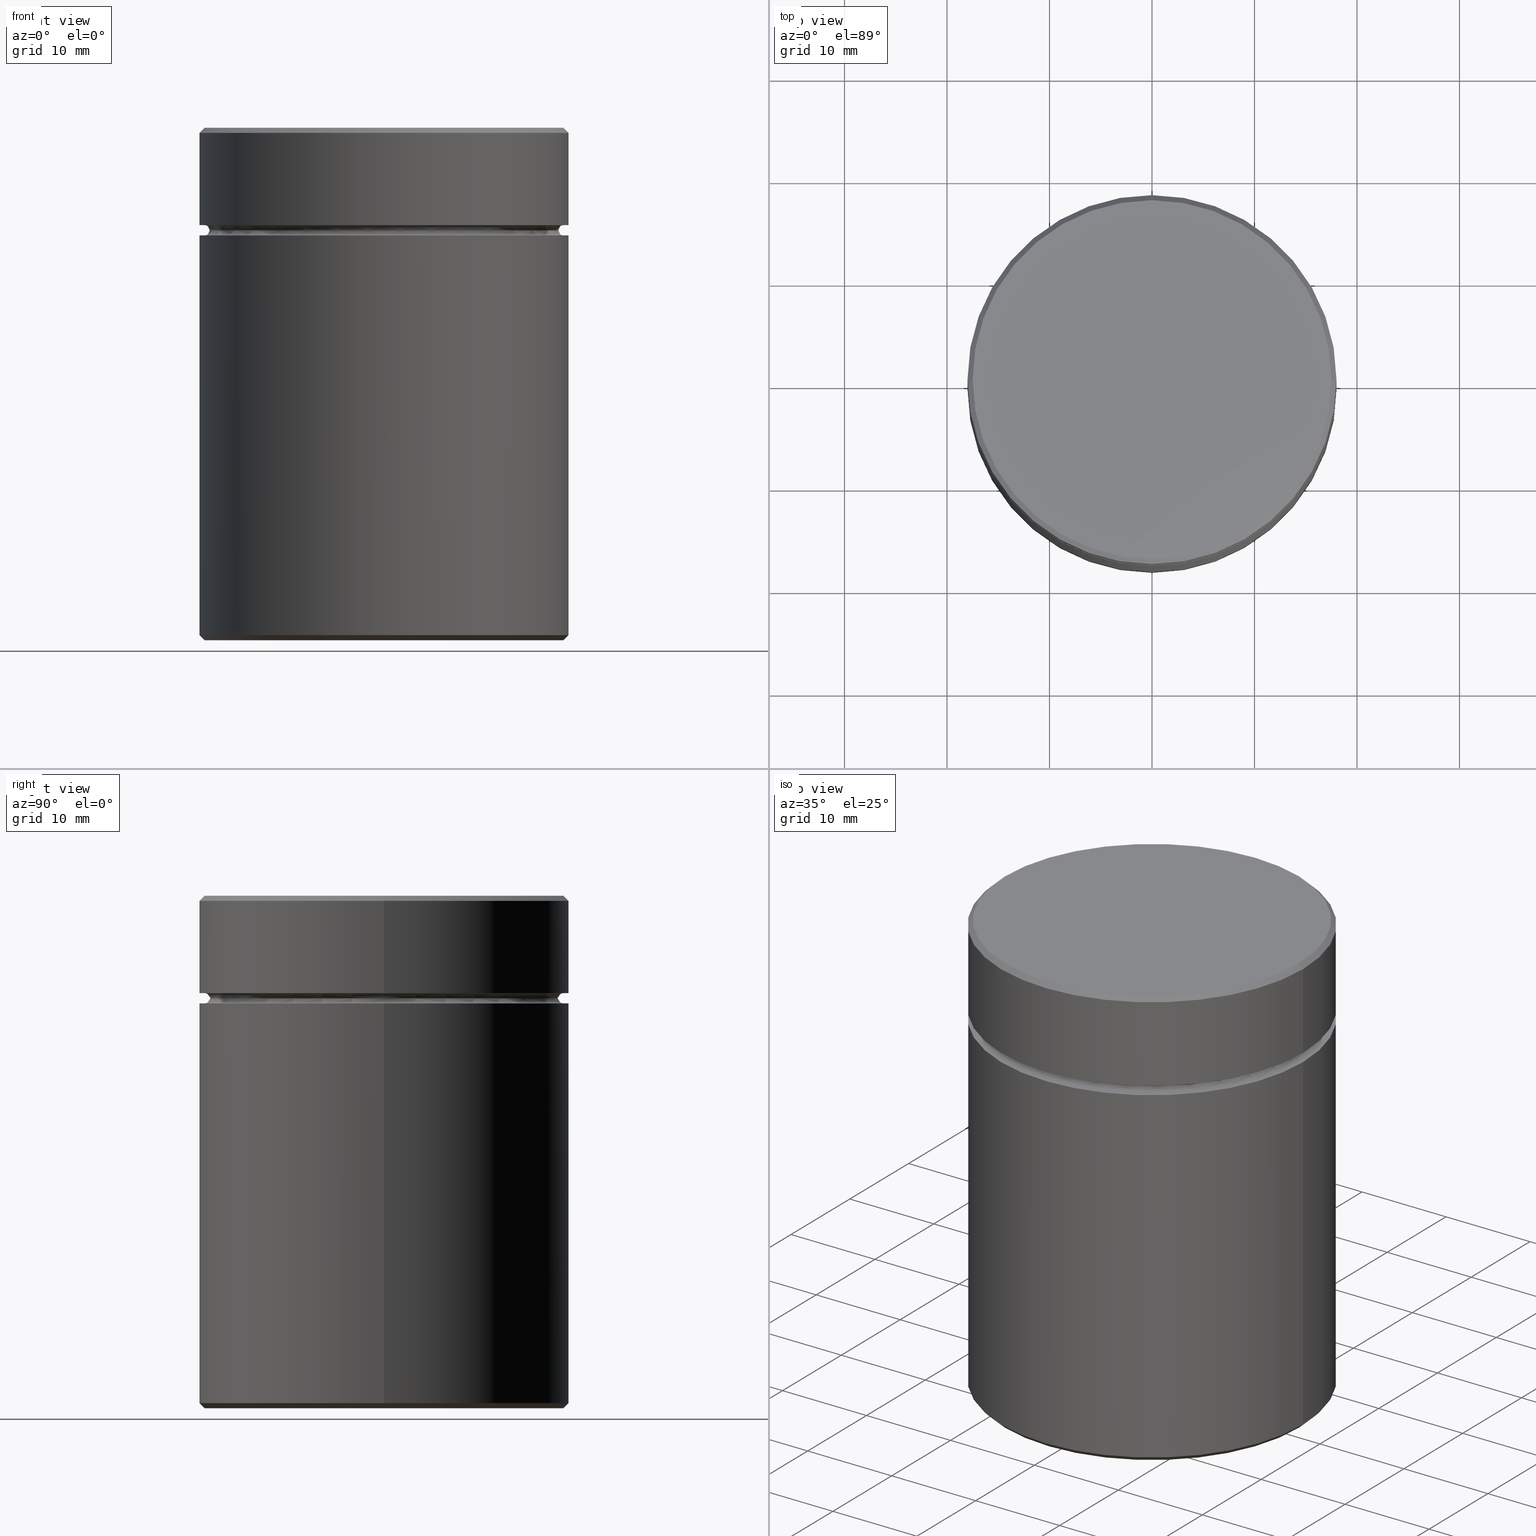
[diagram: canonical four-view strip — front | top / right | iso, engineering-drawing reading convention]
A machine part, canonical four-view strip (front | top / right | iso — engineering-drawing reading convention). The complete STEP part file that produces these views, byte-faithful:
ISO-10303-21;
HEADER;
FILE_DESCRIPTION (( 'STEP AP203' ),
    '1' );
FILE_NAME ('c985.STEP',
    '2024-01-08T12:16:09',
    ( '' ),
    ( '' ),
    'SwSTEP 2.0',
    'SolidWorks 2019',
    '' );
FILE_SCHEMA (( 'CONFIG_CONTROL_DESIGN' ));
ENDSEC;

DATA;
#1 = FACE_OUTER_BOUND ( 'NONE', #402, .T. ) ;
#2 = EDGE_LOOP ( 'NONE', ( #281, #153 ) ) ;
#3 = APPROVAL_DATE_TIME ( #391, #237 ) ;
#4 = DESIGN_CONTEXT ( 'detailed design', #121, 'design' ) ;
#5 = EDGE_CURVE ( 'NONE', #124, #300, #252, .T. ) ;
#6 = CLOSED_SHELL ( 'NONE', ( #327, #198, #232, #184, #209, #17, #182, #319, #269, #373, #82, #415, #404, #437, #482, #144, #495, #354, #286 ) ) ;
#7 = TOROIDAL_SURFACE ( 'NONE', #525, 17.49999999999999645, 0.5000000000000000000 ) ;
#8 = CIRCLE ( 'NONE', #537, 18.00000000000000000 ) ;
#9 = ORIENTED_EDGE ( 'NONE', *, *, #130, .F. ) ;
#10 = CARTESIAN_POINT ( 'NONE',  ( 0.000000000000000000, 0.000000000000000000, 0.000000000000000000 ) ) ;
#11 = CARTESIAN_POINT ( 'NONE',  ( 0.000000000000000000, 0.000000000000000000, -10.00000000000000178 ) ) ;
#12 = EDGE_LOOP ( 'NONE', ( #510, #51, #107, #458 ) ) ;
#13 = LINE ( 'NONE', #50, #368 ) ;
#14 = DIRECTION ( 'NONE',  ( -0.000000000000000000, -0.000000000000000000, 1.000000000000000000 ) ) ;
#15 = CC_DESIGN_PERSON_AND_ORGANIZATION_ASSIGNMENT ( #43, #565, ( #550 ) ) ;
#16 = ORIENTED_EDGE ( 'NONE', *, *, #459, .F. ) ;
#17 = ADVANCED_FACE ( 'NONE', ( #427 ), #523, .T. ) ;
#18 = CARTESIAN_POINT ( 'NONE',  ( 0.000000000000000000, 0.000000000000000000, -49.50000000000000000 ) ) ;
#19 = CIRCLE ( 'NONE', #533, 12.50000000000000000 ) ;
#20 = AXIS2_PLACEMENT_3D ( 'NONE', #174, #436, #217 ) ;
#21 = DIRECTION ( 'NONE',  ( -0.000000000000000000, -0.000000000000000000, 1.000000000000000000 ) ) ;
#22 = CARTESIAN_POINT ( 'NONE',  ( 0.000000000000000000, 0.000000000000000000, -10.50000000000000178 ) ) ;
#23 = CARTESIAN_POINT ( 'NONE',  ( 17.50000000000000000, 2.173748068486551641E-15, 0.000000000000000000 ) ) ;
#24 = ORIENTED_EDGE ( 'NONE', *, *, #283, .T. ) ;
#25 = CARTESIAN_POINT ( 'NONE',  ( 17.49999999999999645, 0.000000000000000000, -10.50000000000000178 ) ) ;
#26 = CARTESIAN_POINT ( 'NONE',  ( 0.000000000000000000, 0.000000000000000000, 0.000000000000000000 ) ) ;
#27 = ORIENTED_EDGE ( 'NONE', *, *, #378, .T. ) ;
#28 = EDGE_CURVE ( 'NONE', #445, #89, #474, .T. ) ;
#29 = FACE_OUTER_BOUND ( 'NONE', #12, .T. ) ;
#30 = ORIENTED_EDGE ( 'NONE', *, *, #28, .F. ) ;
#31 = CIRCLE ( 'NONE', #242, 17.50000000000000000 ) ;
#32 = APPROVAL_PERSON_ORGANIZATION ( #220, #516, #240 ) ;
#33 = DIRECTION ( 'NONE',  ( -0.000000000000000000, -0.000000000000000000, 1.000000000000000000 ) ) ;
#34 = EDGE_LOOP ( 'NONE', ( #224, #158 ) ) ;
#35 = DIRECTION ( 'NONE',  ( 1.000000000000000000, 0.000000000000000000, 0.000000000000000000 ) ) ;
#36 = EDGE_CURVE ( 'NONE', #249, #157, #271, .T. ) ;
#37 = FACE_BOUND ( 'NONE', #229, .T. ) ;
#38 = DIRECTION ( 'NONE',  ( 1.000000000000000000, 0.000000000000000000, 0.000000000000000000 ) ) ;
#39 = CARTESIAN_POINT ( 'NONE',  ( 0.000000000000000000, 0.000000000000000000, -9.499999999999998224 ) ) ;
#40 = VECTOR ( 'NONE', #531, 999.9999999999998863 ) ;
#41 = AXIS2_PLACEMENT_3D ( 'NONE', #150, #362, #329 ) ;
#42 = CARTESIAN_POINT ( 'NONE',  ( 0.000000000000000000, 0.000000000000000000, -9.500000000000000000 ) ) ;
#43 = PERSON_AND_ORGANIZATION ( #149, #339 ) ;
#44 = LINE ( 'NONE', #307, #338 ) ;
#45 = CARTESIAN_POINT ( 'NONE',  ( 17.49999999999999645, 2.143131898507867854E-15, -9.499999999999998224 ) ) ;
#46 = DIRECTION ( 'NONE',  ( 0.000000000000000000, 0.000000000000000000, -1.000000000000000000 ) ) ;
#47 = DIRECTION ( 'NONE',  ( 0.000000000000000000, -0.000000000000000000, 1.000000000000000000 ) ) ;
#48 = AXIS2_PLACEMENT_3D ( 'NONE', #471, #509, #372 ) ;
#49 = ORIENTED_EDGE ( 'NONE', *, *, #112, .T. ) ;
#50 = CARTESIAN_POINT ( 'NONE',  ( -12.50000000000000000, 0.000000000000000000, -18.00000000000000355 ) ) ;
#51 = ORIENTED_EDGE ( 'NONE', *, *, #450, .F. ) ;
#52 = MECHANICAL_CONTEXT ( 'NONE', #88, 'mechanical' ) ;
#53 = EDGE_CURVE ( 'NONE', #294, #68, #446, .T. ) ;
#54 = CARTESIAN_POINT ( 'NONE',  ( -17.49999999999999645, 2.143131898507867854E-15, -10.50000000000000178 ) ) ;
#55 = CIRCLE ( 'NONE', #253, 17.49999999999999645 ) ;
#56 = AXIS2_PLACEMENT_3D ( 'NONE', #275, #323, #363 ) ;
#57 = ORIENTED_EDGE ( 'NONE', *, *, #75, .T. ) ;
#58 = CC_DESIGN_PERSON_AND_ORGANIZATION_ASSIGNMENT ( #212, #489, ( #114 ) ) ;
#59 = DIRECTION ( 'NONE',  ( -1.000000000000000000, 0.000000000000000000, 0.000000000000000000 ) ) ;
#60 = VERTEX_POINT ( 'NONE', #320 ) ;
#61 = DIRECTION ( 'NONE',  ( 1.000000000000000000, 0.000000000000000000, 0.000000000000000000 ) ) ;
#62 = VERTEX_POINT ( 'NONE', #54 ) ;
#63 = FACE_OUTER_BOUND ( 'NONE', #119, .T. ) ;
#64 = ORIENTED_EDGE ( 'NONE', *, *, #65, .F. ) ;
#65 = EDGE_CURVE ( 'NONE', #326, #294, #84, .T. ) ;
#66 = ORIENTED_EDGE ( 'NONE', *, *, #90, .F. ) ;
#67 = FACE_BOUND ( 'NONE', #2, .T. ) ;
#68 = VERTEX_POINT ( 'NONE', #97 ) ;
#69 = TOROIDAL_SURFACE ( 'NONE', #567, 17.49999999999999645, 0.5000000000000000000 ) ;
#70 = ORIENTED_EDGE ( 'NONE', *, *, #256, .F. ) ;
#71 = DIRECTION ( 'NONE',  ( 0.000000000000000000, -0.000000000000000000, 1.000000000000000000 ) ) ;
#72 = VERTEX_POINT ( 'NONE', #356 ) ;
#73 = FACE_OUTER_BOUND ( 'NONE', #532, .T. ) ;
#74 = CARTESIAN_POINT ( 'NONE',  ( -17.50000000000000000, 2.173748068486551641E-15, -50.00000000000000000 ) ) ;
#75 = EDGE_CURVE ( 'NONE', #293, #396, #393, .T. ) ;
#76 = CIRCLE ( 'NONE', #448, 0.5000000000000004441 ) ;
#77 = DIRECTION ( 'NONE',  ( -0.000000000000000000, -0.000000000000000000, 1.000000000000000000 ) ) ;
#78 = APPROVAL_PERSON_ORGANIZATION ( #135, #527, #569 ) ;
#79 = DIRECTION ( 'NONE',  ( 0.000000000000000000, 0.000000000000000000, -1.000000000000000000 ) ) ;
#80 = CARTESIAN_POINT ( 'NONE',  ( 17.50000000000000000, 0.000000000000000000, -50.00000000000000000 ) ) ;
#81 = CARTESIAN_POINT ( 'NONE',  ( 0.000000000000000000, 0.000000000000000000, -9.999999999999998224 ) ) ;
#82 = ADVANCED_FACE ( 'NONE', ( #67, #241 ), #412, .T. ) ;
#83 = APPROVAL_STATUS ( 'not_yet_approved' ) ;
#84 = CIRCLE ( 'NONE', #399, 17.50000000000000000 ) ;
#85 = VECTOR ( 'NONE', #419, 1000.000000000000000 ) ;
#86 = CC_DESIGN_APPROVAL ( #527, ( #114 ) ) ;
#87 = PERSON_AND_ORGANIZATION_ROLE ( 'design_supplier' ) ;
#88 = APPLICATION_CONTEXT ( 'configuration controlled 3d designs of mechanical parts and assemblies' ) ;
#89 = VERTEX_POINT ( 'NONE', #127 ) ;
#90 = EDGE_CURVE ( 'NONE', #203, #293, #146, .T. ) ;
#91 = LINE ( 'NONE', #183, #40 ) ;
#92 = ORIENTED_EDGE ( 'NONE', *, *, #493, .T. ) ;
#93 = APPROVAL_STATUS ( 'not_yet_approved' ) ;
#94 = ADVANCED_BREP_SHAPE_REPRESENTATION ( 'c985', ( #370, #361 ), #280 ) ;
#95 = AXIS2_PLACEMENT_3D ( 'NONE', #468, #105, #285 ) ;
#96 = CC_DESIGN_PERSON_AND_ORGANIZATION_ASSIGNMENT ( #539, #505, ( #152 ) ) ;
#97 = CARTESIAN_POINT ( 'NONE',  ( -18.00000000000000000, 2.204364238465235428E-15, -0.5000000000000108802 ) ) ;
#98 = EDGE_CURVE ( 'NONE', #203, #68, #357, .T. ) ;
#99 = DIRECTION ( 'NONE',  ( -1.000000000000000000, 0.000000000000000000, 0.000000000000000000 ) ) ;
#100 = VERTEX_POINT ( 'NONE', #403 ) ;
#101 = AXIS2_PLACEMENT_3D ( 'NONE', #122, #382, #469 ) ;
#102 = CC_DESIGN_APPROVAL ( #237, ( #550 ) ) ;
#103 = ORIENTED_EDGE ( 'NONE', *, *, #90, .T. ) ;
#104 = DIRECTION ( 'NONE',  ( -0.000000000000000000, -0.000000000000000000, 1.000000000000000000 ) ) ;
#105 = DIRECTION ( 'NONE',  ( -1.224646799147353207E-16, 1.000000000000000000, 0.000000000000000000 ) ) ;
#106 = ORIENTED_EDGE ( 'NONE', *, *, #177, .F. ) ;
#107 = ORIENTED_EDGE ( 'NONE', *, *, #176, .T. ) ;
#108 = DIRECTION ( 'NONE',  ( -1.000000000000000000, 0.000000000000000000, 0.000000000000000000 ) ) ;
#109 = CARTESIAN_POINT ( 'NONE',  ( 0.000000000000000000, 18.00000000000000000, -9.499999999999998224 ) ) ;
#110 = ORIENTED_EDGE ( 'NONE', *, *, #366, .T. ) ;
#111 = VECTOR ( 'NONE', #358, 999.9999999999998863 ) ;
#112 = EDGE_CURVE ( 'NONE', #444, #249, #13, .T. ) ;
#113 = AXIS2_PLACEMENT_3D ( 'NONE', #398, #234, #186 ) ;
#114 = PRODUCT_DEFINITION_FORMATION_WITH_SPECIFIED_SOURCE ( 'LIBOVOLN�', '', #125, .NOT_KNOWN. ) ;
#115 = DIRECTION ( 'NONE',  ( 1.000000000000000000, 0.000000000000000000, 0.000000000000000000 ) ) ;
#116 = EDGE_LOOP ( 'NONE', ( #70, #66 ) ) ;
#117 = CARTESIAN_POINT ( 'NONE',  ( -12.50000000000000000, 0.000000000000000000, -50.00000000000000000 ) ) ;
#118 = CARTESIAN_POINT ( 'NONE',  ( 0.000000000000000000, 0.000000000000000000, 0.000000000000000000 ) ) ;
#119 = EDGE_LOOP ( 'NONE', ( #552, #248 ) ) ;
#120 = EDGE_LOOP ( 'NONE', ( #64, #27, #16, #243 ) ) ;
#121 = APPLICATION_CONTEXT ( 'configuration controlled 3d designs of mechanical parts and assemblies' ) ;
#122 = CARTESIAN_POINT ( 'NONE',  ( -17.49999999999999645, 0.000000000000000000, -9.999999999999998224 ) ) ;
#123 = FACE_OUTER_BOUND ( 'NONE', #369, .T. ) ;
#124 = VERTEX_POINT ( 'NONE', #268 ) ;
#125 = PRODUCT ( 'c985', 'c985', '', ( #52 ) ) ;
#126 = EDGE_CURVE ( 'NONE', #62, #519, #55, .T. ) ;
#127 = CARTESIAN_POINT ( 'NONE',  ( -17.49999999999999645, 0.000000000000000000, -9.499999999999998224 ) ) ;
#128 = DIRECTION ( 'NONE',  ( 1.000000000000000000, 0.000000000000000000, 0.000000000000000000 ) ) ;
#129 = CIRCLE ( 'NONE', #272, 17.49999999999999645 ) ;
#130 = EDGE_CURVE ( 'NONE', #300, #60, #239, .T. ) ;
#131 = CYLINDRICAL_SURFACE ( 'NONE', #360, 18.00000000000000000 ) ;
#132 = PLANE ( 'NONE',  #488 ) ;
#133 = ORIENTED_EDGE ( 'NONE', *, *, #98, .T. ) ;
#134 = CYLINDRICAL_SURFACE ( 'NONE', #392, 18.00000000000000000 ) ;
#135 = PERSON_AND_ORGANIZATION ( #149, #339 ) ;
#136 = EDGE_CURVE ( 'NONE', #553, #445, #231, .T. ) ;
#137 = AXIS2_PLACEMENT_3D ( 'NONE', #154, #364, #502 ) ;
#138 = CIRCLE ( 'NONE', #173, 12.50000000000000000 ) ;
#139 = DIRECTION ( 'NONE',  ( -0.000000000000000000, -0.000000000000000000, 1.000000000000000000 ) ) ;
#140 = APPROVAL_ROLE ( '' ) ;
#141 = VERTEX_POINT ( 'NONE', #414 ) ;
#142 = DIRECTION ( 'NONE',  ( 1.000000000000000000, 0.000000000000000000, 0.000000000000000000 ) ) ;
#143 = PRODUCT_RELATED_PRODUCT_CATEGORY ( 'detail', '', ( #125 ) ) ;
#144 = ADVANCED_FACE ( 'NONE', ( #409 ), #337, .T. ) ;
#145 = DIRECTION ( 'NONE',  ( 0.000000000000000000, 0.000000000000000000, 1.000000000000000000 ) ) ;
#146 = CIRCLE ( 'NONE', #503, 18.00000000000000000 ) ;
#147 = AXIS2_PLACEMENT_3D ( 'NONE', #169, #199, #485 ) ;
#148 = ORIENTED_EDGE ( 'NONE', *, *, #53, .T. ) ;
#149 = PERSON ( 'NEUR�EN�', 'NEUR�EN�', 'NEUR�EN�', ('NEUR�EN�'), ('NEUR�EN�'), ('NEUR�EN�') ) ;
#150 = CARTESIAN_POINT ( 'NONE',  ( 0.000000000000000000, 0.000000000000000000, -49.50000000000000000 ) ) ;
#151 = DIRECTION ( 'NONE',  ( 1.000000000000000000, 0.000000000000000000, 0.000000000000000000 ) ) ;
#152 = PRODUCT_DEFINITION ( 'NEZN�M�', '', #114, #4 ) ;
#153 = ORIENTED_EDGE ( 'NONE', *, *, #28, .T. ) ;
#154 = CARTESIAN_POINT ( 'NONE',  ( 0.000000000000000000, 0.000000000000000000, -18.00000000000000355 ) ) ;
#155 = AXIS2_PLACEMENT_3D ( 'NONE', #257, #432, #383 ) ;
#156 = EDGE_LOOP ( 'NONE', ( #287, #517, #200, #9 ) ) ;
#157 = VERTEX_POINT ( 'NONE', #462 ) ;
#158 = ORIENTED_EDGE ( 'NONE', *, *, #554, .F. ) ;
#159 = DIRECTION ( 'NONE',  ( 0.000000000000000000, 0.000000000000000000, -1.000000000000000000 ) ) ;
#160 = ORIENTED_EDGE ( 'NONE', *, *, #313, .T. ) ;
#161 = FACE_OUTER_BOUND ( 'NONE', #120, .T. ) ;
#162 = ORIENTED_EDGE ( 'NONE', *, *, #378, .F. ) ;
#163 = CARTESIAN_POINT ( 'NONE',  ( 0.000000000000000000, 0.000000000000000000, -0.5000000000000108802 ) ) ;
#164 = VECTOR ( 'NONE', #551, 1000.000000000000114 ) ;
#165 = ORIENTED_EDGE ( 'NONE', *, *, #297, .F. ) ;
#166 = DIRECTION ( 'NONE',  ( 1.000000000000000000, 0.000000000000000000, 0.000000000000000000 ) ) ;
#167 = ORIENTED_EDGE ( 'NONE', *, *, #176, .F. ) ;
#168 = EDGE_CURVE ( 'NONE', #545, #300, #204, .T. ) ;
#169 = CARTESIAN_POINT ( 'NONE',  ( 0.000000000000000000, 0.000000000000000000, -18.00000000000000355 ) ) ;
#170 = DIRECTION ( 'NONE',  ( 1.000000000000000000, 0.000000000000000000, 0.000000000000000000 ) ) ;
#171 = SECURITY_CLASSIFICATION_LEVEL ( 'unclassified' ) ;
#172 = CIRCLE ( 'NONE', #291, 18.00000000000000000 ) ;
#173 = AXIS2_PLACEMENT_3D ( 'NONE', #384, #425, #483 ) ;
#174 = CARTESIAN_POINT ( 'NONE',  ( 0.000000000000000000, 0.000000000000000000, -18.00000000000000355 ) ) ;
#175 = COORDINATED_UNIVERSAL_TIME_OFFSET ( 1, 0, .AHEAD. ) ;
#176 = EDGE_CURVE ( 'NONE', #553, #519, #549, .T. ) ;
#177 = EDGE_CURVE ( 'NONE', #545, #314, #31, .T. ) ;
#178 = TOROIDAL_SURFACE ( 'NONE', #352, 17.49999999999999645, 0.5000000000000000000 ) ;
#179 = CIRCLE ( 'NONE', #215, 18.00000000000000000 ) ;
#180 = DIRECTION ( 'NONE',  ( -1.000000000000000000, 0.000000000000000000, 0.000000000000000000 ) ) ;
#181 = DIRECTION ( 'NONE',  ( 1.000000000000000000, 0.000000000000000000, 0.000000000000000000 ) ) ;
#182 = ADVANCED_FACE ( 'NONE', ( #250 ), #546, .T. ) ;
#183 = CARTESIAN_POINT ( 'NONE',  ( 17.50000000000000000, 2.143131898507868248E-15, 0.000000000000000000 ) ) ;
#184 = ADVANCED_FACE ( 'NONE', ( #161 ), #185, .T. ) ;
#185 = CONICAL_SURFACE ( 'NONE', #309, 17.50000000000000000, 0.7853981633974344012 ) ;
#186 = DIRECTION ( 'NONE',  ( -1.000000000000000000, 0.000000000000000000, 0.000000000000000000 ) ) ;
#187 = CIRCLE ( 'NONE', #377, 18.00000000000000000 ) ;
#188 = EDGE_LOOP ( 'NONE', ( #288, #133, #447, #535 ) ) ;
#189 = CARTESIAN_POINT ( 'NONE',  ( 0.000000000000000000, 0.000000000000000000, 0.000000000000000000 ) ) ;
#190 = DIRECTION ( 'NONE',  ( 1.000000000000000000, 0.000000000000000000, 0.000000000000000000 ) ) ;
#191 = CYLINDRICAL_SURFACE ( 'NONE', #137, 12.50000000000000000 ) ;
#192 = EDGE_CURVE ( 'NONE', #72, #444, #487, .T. ) ;
#193 = CALENDAR_DATE ( 2024, 8, 1 ) ;
#194 = FACE_OUTER_BOUND ( 'NONE', #227, .T. ) ;
#195 = APPROVAL_DATE_TIME ( #235, #516 ) ;
#196 = DIRECTION ( 'NONE',  ( -0.000000000000000000, -0.000000000000000000, 1.000000000000000000 ) ) ;
#197 = AXIS2_PLACEMENT_3D ( 'NONE', #348, #423, #296 ) ;
#198 = ADVANCED_FACE ( 'NONE', ( #194 ), #178, .F. ) ;
#199 = DIRECTION ( 'NONE',  ( 0.000000000000000000, 0.000000000000000000, -1.000000000000000000 ) ) ;
#200 = ORIENTED_EDGE ( 'NONE', *, *, #530, .F. ) ;
#201 = CARTESIAN_POINT ( 'NONE',  ( 18.00000000000000000, 0.000000000000000000, -49.50000000000000000 ) ) ;
#202 = EDGE_LOOP ( 'NONE', ( #247, #106, #506, #346 ) ) ;
#203 = VERTEX_POINT ( 'NONE', #282 ) ;
#204 = LINE ( 'NONE', #201, #164 ) ;
#205 = CARTESIAN_POINT ( 'NONE',  ( 0.000000000000000000, 0.000000000000000000, 0.000000000000000000 ) ) ;
#206 = CARTESIAN_POINT ( 'NONE',  ( 0.000000000000000000, 0.000000000000000000, -10.00000000000000178 ) ) ;
#207 = CIRCLE ( 'NONE', #476, 16.99999999999999645 ) ;
#208 = EDGE_LOOP ( 'NONE', ( #162, #507, #148, #453 ) ) ;
#209 = ADVANCED_FACE ( 'NONE', ( #534 ), #191, .F. ) ;
#210 = CARTESIAN_POINT ( 'NONE',  ( -18.00000000000000000, 2.204364238465235428E-15, 0.000000000000000000 ) ) ;
#211 = FACE_OUTER_BOUND ( 'NONE', #405, .T. ) ;
#212 = PERSON_AND_ORGANIZATION ( #149, #339 ) ;
#213 = AXIS2_PLACEMENT_3D ( 'NONE', #18, #196, #35 ) ;
#214 =( LENGTH_UNIT ( ) NAMED_UNIT ( * ) SI_UNIT ( .MILLI., .METRE. ) );
#215 = AXIS2_PLACEMENT_3D ( 'NONE', #301, #77, #115 ) ;
#216 = EDGE_CURVE ( 'NONE', #89, #445, #129, .T. ) ;
#217 = DIRECTION ( 'NONE',  ( -1.000000000000000000, 0.000000000000000000, 0.000000000000000000 ) ) ;
#218 = DIRECTION ( 'NONE',  ( -1.000000000000000000, 0.000000000000000000, 0.000000000000000000 ) ) ;
#219 = DIRECTION ( 'NONE',  ( -0.000000000000000000, -0.000000000000000000, 1.000000000000000000 ) ) ;
#220 = PERSON_AND_ORGANIZATION ( #149, #339 ) ;
#221 = AXIS2_PLACEMENT_3D ( 'NONE', #205, #71, #170 ) ;
#222 = CIRCLE ( 'NONE', #568, 17.50000000000000000 ) ;
#223 = DIRECTION ( 'NONE',  ( 0.000000000000000000, 0.000000000000000000, -1.000000000000000000 ) ) ;
#224 = ORIENTED_EDGE ( 'NONE', *, *, #36, .F. ) ;
#225 = COORDINATED_UNIVERSAL_TIME_OFFSET ( 1, 0, .AHEAD. ) ;
#226 = PLANE ( 'NONE',  #147 ) ;
#227 = EDGE_LOOP ( 'NONE', ( #442, #463, #540, #167 ) ) ;
#228 = DIRECTION ( 'NONE',  ( -1.000000000000000000, 0.000000000000000000, 0.000000000000000000 ) ) ;
#229 = EDGE_LOOP ( 'NONE', ( #160, #456 ) ) ;
#230 = PERSON_AND_ORGANIZATION ( #149, #339 ) ;
#231 = CIRCLE ( 'NONE', #95, 0.5000000000000004441 ) ;
#232 = ADVANCED_FACE ( 'NONE', ( #454 ), #349, .T. ) ;
#233 = CC_DESIGN_APPROVAL ( #516, ( #152 ) ) ;
#234 = DIRECTION ( 'NONE',  ( 0.000000000000000000, 0.000000000000000000, -1.000000000000000000 ) ) ;
#235 = DATE_AND_TIME ( #193, #261 ) ;
#236 = ORIENTED_EDGE ( 'NONE', *, *, #501, .F. ) ;
#237 = APPROVAL ( #528, 'NEUR�EN�' ) ;
#238 = ORIENTED_EDGE ( 'NONE', *, *, #554, .T. ) ;
#239 = LINE ( 'NONE', #541, #85 ) ;
#240 = APPROVAL_ROLE ( '' ) ;
#241 = FACE_OUTER_BOUND ( 'NONE', #116, .T. ) ;
#242 = AXIS2_PLACEMENT_3D ( 'NONE', #331, #298, #245 ) ;
#243 = ORIENTED_EDGE ( 'NONE', *, *, #53, .F. ) ;
#244 = DIRECTION ( 'NONE',  ( 1.000000000000000000, 0.000000000000000000, 0.000000000000000000 ) ) ;
#245 = DIRECTION ( 'NONE',  ( -1.000000000000000000, 0.000000000000000000, 0.000000000000000000 ) ) ;
#246 = DIRECTION ( 'NONE',  ( 1.224646799147353207E-16, 1.000000000000000000, 0.000000000000000000 ) ) ;
#247 = ORIENTED_EDGE ( 'NONE', *, *, #490, .F. ) ;
#248 = ORIENTED_EDGE ( 'NONE', *, *, #192, .T. ) ;
#249 = VERTEX_POINT ( 'NONE', #117 ) ;
#250 = FACE_OUTER_BOUND ( 'NONE', #188, .T. ) ;
#251 = CARTESIAN_POINT ( 'NONE',  ( 18.00000000000000000, 0.000000000000000000, -49.50000000000000000 ) ) ;
#252 = CIRCLE ( 'NONE', #566, 18.00000000000000000 ) ;
#253 = AXIS2_PLACEMENT_3D ( 'NONE', #439, #46, #244 ) ;
#254 = CARTESIAN_POINT ( 'NONE',  ( 18.00000000000000000, 0.000000000000000000, -0.5000000000000108802 ) ) ;
#255 = CARTESIAN_POINT ( 'NONE',  ( 0.000000000000000000, 0.000000000000000000, -18.00000000000000355 ) ) ;
#256 = EDGE_CURVE ( 'NONE', #293, #203, #8, .T. ) ;
#257 = CARTESIAN_POINT ( 'NONE',  ( 0.000000000000000000, 0.000000000000000000, 0.000000000000000000 ) ) ;
#258 = CIRCLE ( 'NONE', #520, 17.49999999999999645 ) ;
#259 = DATE_TIME_ROLE ( 'creation_date' ) ;
#260 = AXIS2_PLACEMENT_3D ( 'NONE', #344, #478, #166 ) ;
#261 = LOCAL_TIME ( 13, 16, 9.000000000000000000, #267 ) ;
#262 = FACE_OUTER_BOUND ( 'NONE', #555, .T. ) ;
#263 = PERSON_AND_ORGANIZATION ( #149, #339 ) ;
#264 = APPLICATION_PROTOCOL_DEFINITION ( 'international standard', 'config_control_design', 1994, #121 ) ;
#265 = UNCERTAINTY_MEASURE_WITH_UNIT (LENGTH_MEASURE( 1.000000000000000082E-05 ), #214, 'distance_accuracy_value', 'NONE');
#266 = DIRECTION ( 'NONE',  ( -0.7071067811865451302, 8.659560562354903276E-17, 0.7071067811865500152 ) ) ;
#267 = COORDINATED_UNIVERSAL_TIME_OFFSET ( 1, 0, .AHEAD. ) ;
#268 = CARTESIAN_POINT ( 'NONE',  ( -18.00000000000000000, 2.204364238465235428E-15, -49.50000000000000000 ) ) ;
#269 = ADVANCED_FACE ( 'NONE', ( #211 ), #417, .T. ) ;
#270 = ORIENTED_EDGE ( 'NONE', *, *, #547, .F. ) ;
#271 = CIRCLE ( 'NONE', #308, 12.50000000000000000 ) ;
#272 = AXIS2_PLACEMENT_3D ( 'NONE', #407, #451, #59 ) ;
#273 = DIRECTION ( 'NONE',  ( 1.000000000000000000, 0.000000000000000000, 0.000000000000000000 ) ) ;
#274 = EDGE_CURVE ( 'NONE', #294, #326, #303, .T. ) ;
#275 = CARTESIAN_POINT ( 'NONE',  ( 0.000000000000000000, 0.000000000000000000, -0.5000000000000108802 ) ) ;
#276 = DIRECTION ( 'NONE',  ( -0.000000000000000000, -0.000000000000000000, 1.000000000000000000 ) ) ;
#277 = ORIENTED_EDGE ( 'NONE', *, *, #278, .T. ) ;
#278 = EDGE_CURVE ( 'NONE', #72, #157, #521, .T. ) ;
#279 = AXIS2_PLACEMENT_3D ( 'NONE', #109, #290, #465 ) ;
#280 =( GEOMETRIC_REPRESENTATION_CONTEXT ( 3 ) GLOBAL_UNCERTAINTY_ASSIGNED_CONTEXT ( ( #265 ) ) GLOBAL_UNIT_ASSIGNED_CONTEXT ( ( #214, #304, #557 ) ) REPRESENTATION_CONTEXT ( 'NONE', 'WORKASPACE' ) );
#281 = ORIENTED_EDGE ( 'NONE', *, *, #216, .T. ) ;
#282 = CARTESIAN_POINT ( 'NONE',  ( -18.00000000000000000, 2.204364238465235428E-15, -9.500000000000000000 ) ) ;
#283 = EDGE_CURVE ( 'NONE', #141, #89, #376, .T. ) ;
#284 = ORIENTED_EDGE ( 'NONE', *, *, #136, .T. ) ;
#285 = DIRECTION ( 'NONE',  ( -1.000000000000000000, -1.224646799147349509E-16, 0.000000000000000000 ) ) ;
#286 = ADVANCED_FACE ( 'NONE', ( #73 ), #69, .F. ) ;
#287 = ORIENTED_EDGE ( 'NONE', *, *, #501, .T. ) ;
#288 = ORIENTED_EDGE ( 'NONE', *, *, #256, .T. ) ;
#289 = DIRECTION ( 'NONE',  ( -0.000000000000000000, -0.000000000000000000, 1.000000000000000000 ) ) ;
#290 = DIRECTION ( 'NONE',  ( 0.000000000000000000, 0.000000000000000000, -1.000000000000000000 ) ) ;
#291 = AXIS2_PLACEMENT_3D ( 'NONE', #163, #159, #128 ) ;
#292 = CIRCLE ( 'NONE', #56, 18.00000000000000000 ) ;
#293 = VERTEX_POINT ( 'NONE', #559 ) ;
#294 = VERTEX_POINT ( 'NONE', #332 ) ;
#295 = DIRECTION ( 'NONE',  ( -0.000000000000000000, -0.000000000000000000, 1.000000000000000000 ) ) ;
#296 = DIRECTION ( 'NONE',  ( -1.000000000000000000, 0.000000000000000000, 0.000000000000000000 ) ) ;
#297 = EDGE_CURVE ( 'NONE', #100, #60, #322, .T. ) ;
#298 = DIRECTION ( 'NONE',  ( 0.000000000000000000, 0.000000000000000000, -1.000000000000000000 ) ) ;
#299 = DIRECTION ( 'NONE',  ( 0.000000000000000000, 0.000000000000000000, -1.000000000000000000 ) ) ;
#300 = VERTEX_POINT ( 'NONE', #251 ) ;
#301 = CARTESIAN_POINT ( 'NONE',  ( 0.000000000000000000, 0.000000000000000000, -10.50000000000000000 ) ) ;
#302 = DIRECTION ( 'NONE',  ( 0.000000000000000000, 0.000000000000000000, -1.000000000000000000 ) ) ;
#303 = CIRCLE ( 'NONE', #260, 17.50000000000000000 ) ;
#304 =( NAMED_UNIT ( * ) PLANE_ANGLE_UNIT ( ) SI_UNIT ( $, .RADIAN. ) );
#305 = EDGE_CURVE ( 'NONE', #141, #62, #76, .T. ) ;
#306 = ORIENTED_EDGE ( 'NONE', *, *, #490, .T. ) ;
#307 = CARTESIAN_POINT ( 'NONE',  ( -18.00000000000000000, 2.204364238465235428E-15, -49.50000000000000000 ) ) ;
#308 = AXIS2_PLACEMENT_3D ( 'NONE', #317, #223, #180 ) ;
#309 = AXIS2_PLACEMENT_3D ( 'NONE', #334, #512, #228 ) ;
#310 = CALENDAR_DATE ( 2024, 8, 1 ) ;
#311 = DIRECTION ( 'NONE',  ( 1.000000000000000000, 0.000000000000000000, 0.000000000000000000 ) ) ;
#312 = CALENDAR_DATE ( 2024, 8, 1 ) ;
#313 = EDGE_CURVE ( 'NONE', #519, #62, #258, .T. ) ;
#314 = VERTEX_POINT ( 'NONE', #74 ) ;
#315 = DIRECTION ( 'NONE',  ( -0.000000000000000000, -0.000000000000000000, -1.000000000000000000 ) ) ;
#316 = EDGE_LOOP ( 'NONE', ( #270, #306, #236, #375 ) ) ;
#317 = CARTESIAN_POINT ( 'NONE',  ( 0.000000000000000000, 0.000000000000000000, -50.00000000000000000 ) ) ;
#318 = DIRECTION ( 'NONE',  ( -0.000000000000000000, -0.000000000000000000, 1.000000000000000000 ) ) ;
#319 = ADVANCED_FACE ( 'NONE', ( #548, #544 ), #345, .T. ) ;
#320 = CARTESIAN_POINT ( 'NONE',  ( 18.00000000000000000, 0.000000000000000000, -10.50000000000000000 ) ) ;
#321 = PERSON_AND_ORGANIZATION_ROLE ( 'design_owner' ) ;
#322 = CIRCLE ( 'NONE', #48, 18.00000000000000000 ) ;
#323 = DIRECTION ( 'NONE',  ( 0.000000000000000000, 0.000000000000000000, -1.000000000000000000 ) ) ;
#324 = LOCAL_TIME ( 13, 16, 9.000000000000000000, #524 ) ;
#325 = EDGE_LOOP ( 'NONE', ( #500, #340 ) ) ;
#326 = VERTEX_POINT ( 'NONE', #23 ) ;
#327 = ADVANCED_FACE ( 'NONE', ( #123 ), #408, .F. ) ;
#328 = EDGE_LOOP ( 'NONE', ( #342, #103, #57, #110 ) ) ;
#329 = DIRECTION ( 'NONE',  ( 1.000000000000000000, 0.000000000000000000, 0.000000000000000000 ) ) ;
#330 = PRODUCT_DEFINITION_SHAPE ( 'NONE', 'NONE',  #152 ) ;
#331 = CARTESIAN_POINT ( 'NONE',  ( 0.000000000000000000, 0.000000000000000000, -50.00000000000000000 ) ) ;
#332 = CARTESIAN_POINT ( 'NONE',  ( -17.50000000000000000, 0.000000000000000000, 0.000000000000000000 ) ) ;
#333 = DIRECTION ( 'NONE',  ( -0.000000000000000000, -0.000000000000000000, 1.000000000000000000 ) ) ;
#334 = CARTESIAN_POINT ( 'NONE',  ( 0.000000000000000000, 0.000000000000000000, 0.000000000000000000 ) ) ;
#335 = DIRECTION ( 'NONE',  ( -1.000000000000000000, 0.000000000000000000, 0.000000000000000000 ) ) ;
#336 = ORIENTED_EDGE ( 'NONE', *, *, #450, .T. ) ;
#337 = CONICAL_SURFACE ( 'NONE', #461, 17.50000000000000000, 0.7853981633974344012 ) ;
#338 = VECTOR ( 'NONE', #266, 1000.000000000000114 ) ;
#339 = ORGANIZATION ( 'NEUR�EN�', 'NEUR�EN�', '' ) ;
#340 = ORIENTED_EDGE ( 'NONE', *, *, #547, .T. ) ;
#341 = DIRECTION ( 'NONE',  ( 0.000000000000000000, -1.000000000000000000, 0.000000000000000000 ) ) ;
#342 = ORIENTED_EDGE ( 'NONE', *, *, #98, .F. ) ;
#343 = CARTESIAN_POINT ( 'NONE',  ( 18.00000000000000000, 0.000000000000000000, 0.000000000000000000 ) ) ;
#344 = CARTESIAN_POINT ( 'NONE',  ( 0.000000000000000000, 0.000000000000000000, 0.000000000000000000 ) ) ;
#345 = PLANE ( 'NONE',  #558 ) ;
#346 = ORIENTED_EDGE ( 'NONE', *, *, #5, .F. ) ;
#347 = CC_DESIGN_DATE_AND_TIME_ASSIGNMENT ( #351, #560, ( #550 ) ) ;
#348 = CARTESIAN_POINT ( 'NONE',  ( 0.000000000000000000, 0.000000000000000000, -9.999999999999998224 ) ) ;
#349 = CONICAL_SURFACE ( 'NONE', #213, 18.00000000000000000, 0.7853981633974447263 ) ;
#350 = DIRECTION ( 'NONE',  ( 0.000000000000000000, 0.000000000000000000, -1.000000000000000000 ) ) ;
#351 = DATE_AND_TIME ( #353, #497 ) ;
#352 = AXIS2_PLACEMENT_3D ( 'NONE', #11, #318, #499 ) ;
#353 = CALENDAR_DATE ( 2024, 8, 1 ) ;
#354 = ADVANCED_FACE ( 'NONE', ( #29 ), #7, .F. ) ;
#355 = LOCAL_TIME ( 13, 16, 9.000000000000000000, #175 ) ;
#356 = CARTESIAN_POINT ( 'NONE',  ( 12.50000000000000000, 1.530808498934191521E-15, -18.00000000000000355 ) ) ;
#357 = LINE ( 'NONE', #210, #513 ) ;
#358 = DIRECTION ( 'NONE',  ( -0.7071067811865376918, 0.000000000000000000, -0.7071067811865574537 ) ) ;
#359 = EDGE_CURVE ( 'NONE', #444, #72, #19, .T. ) ;
#360 = AXIS2_PLACEMENT_3D ( 'NONE', #118, #333, #466 ) ;
#361 = AXIS2_PLACEMENT_3D ( 'NONE', #189, #145, #273 ) ;
#362 = DIRECTION ( 'NONE',  ( -0.000000000000000000, -0.000000000000000000, 1.000000000000000000 ) ) ;
#363 = DIRECTION ( 'NONE',  ( 1.000000000000000000, 0.000000000000000000, 0.000000000000000000 ) ) ;
#364 = DIRECTION ( 'NONE',  ( -0.000000000000000000, -0.000000000000000000, -1.000000000000000000 ) ) ;
#365 = ORIENTED_EDGE ( 'NONE', *, *, #136, .F. ) ;
#366 = EDGE_CURVE ( 'NONE', #396, #68, #172, .T. ) ;
#367 = CARTESIAN_POINT ( 'NONE',  ( -18.00000000000000000, 2.204364238465235428E-15, 0.000000000000000000 ) ) ;
#368 = VECTOR ( 'NONE', #315, 1000.000000000000000 ) ;
#369 = EDGE_LOOP ( 'NONE', ( #92, #284, #455, #410 ) ) ;
#370 = MANIFOLD_SOLID_BREP ( 'Zaoblit1', #6 ) ;
#371 = CARTESIAN_POINT ( 'NONE',  ( 17.49999999999999645, 0.000000000000000000, -10.00000000000000178 ) ) ;
#372 = DIRECTION ( 'NONE',  ( 1.000000000000000000, 0.000000000000000000, 0.000000000000000000 ) ) ;
#373 = ADVANCED_FACE ( 'NONE', ( #522 ), #131, .T. ) ;
#374 = DIRECTION ( 'NONE',  ( 1.000000000000000000, 0.000000000000000000, 0.000000000000000000 ) ) ;
#375 = ORIENTED_EDGE ( 'NONE', *, *, #168, .F. ) ;
#376 = CIRCLE ( 'NONE', #101, 0.5000000000000004441 ) ;
#377 = AXIS2_PLACEMENT_3D ( 'NONE', #460, #21, #335 ) ;
#378 = EDGE_CURVE ( 'NONE', #326, #396, #91, .T. ) ;
#379 = ORIENTED_EDGE ( 'NONE', *, *, #5, .T. ) ;
#380 = CARTESIAN_POINT ( 'NONE',  ( 0.000000000000000000, 0.000000000000000000, -9.500000000000000000 ) ) ;
#381 = CARTESIAN_POINT ( 'NONE',  ( 0.000000000000000000, 0.000000000000000000, -49.50000000000000000 ) ) ;
#382 = DIRECTION ( 'NONE',  ( -0.000000000000000000, -1.000000000000000000, -0.000000000000000000 ) ) ;
#383 = DIRECTION ( 'NONE',  ( 1.000000000000000000, 0.000000000000000000, 0.000000000000000000 ) ) ;
#384 = CARTESIAN_POINT ( 'NONE',  ( 0.000000000000000000, 0.000000000000000000, -50.00000000000000000 ) ) ;
#385 = DIRECTION ( 'NONE',  ( -1.000000000000000000, 0.000000000000000000, 0.000000000000000000 ) ) ;
#386 = AXIS2_PLACEMENT_3D ( 'NONE', #475, #289, #142 ) ;
#387 = COORDINATED_UNIVERSAL_TIME_OFFSET ( 1, 0, .AHEAD. ) ;
#388 = CARTESIAN_POINT ( 'NONE',  ( 0.000000000000000000, 0.000000000000000000, -10.00000000000000178 ) ) ;
#389 = CARTESIAN_POINT ( 'NONE',  ( 0.000000000000000000, 0.000000000000000000, -50.00000000000000000 ) ) ;
#390 = VECTOR ( 'NONE', #457, 1000.000000000000000 ) ;
#391 = DATE_AND_TIME ( #312, #355 ) ;
#392 = AXIS2_PLACEMENT_3D ( 'NONE', #494, #562, #431 ) ;
#393 = LINE ( 'NONE', #343, #390 ) ;
#394 = ORIENTED_EDGE ( 'NONE', *, *, #297, .T. ) ;
#395 = PERSON_AND_ORGANIZATION ( #149, #339 ) ;
#396 = VERTEX_POINT ( 'NONE', #254 ) ;
#397 = DIRECTION ( 'NONE',  ( -0.000000000000000000, -0.000000000000000000, 1.000000000000000000 ) ) ;
#398 = CARTESIAN_POINT ( 'NONE',  ( 0.000000000000000000, 0.000000000000000000, -18.00000000000000355 ) ) ;
#399 = AXIS2_PLACEMENT_3D ( 'NONE', #10, #397, #190 ) ;
#400 = CC_DESIGN_SECURITY_CLASSIFICATION ( #550, ( #114 ) ) ;
#401 = CARTESIAN_POINT ( 'NONE',  ( -17.50000000000000000, 0.000000000000000000, 0.000000000000000000 ) ) ;
#402 = EDGE_LOOP ( 'NONE', ( #563, #379, #492, #165 ) ) ;
#403 = CARTESIAN_POINT ( 'NONE',  ( -18.00000000000000000, 2.204364238465235428E-15, -10.50000000000000000 ) ) ;
#404 = ADVANCED_FACE ( 'NONE', ( #1 ), #134, .T. ) ;
#405 = EDGE_LOOP ( 'NONE', ( #416, #484 ) ) ;
#406 = FACE_OUTER_BOUND ( 'NONE', #202, .T. ) ;
#407 = CARTESIAN_POINT ( 'NONE',  ( 0.000000000000000000, 0.000000000000000000, -9.499999999999998224 ) ) ;
#408 = TOROIDAL_SURFACE ( 'NONE', #197, 17.49999999999999645, 0.5000000000000000000 ) ;
#409 = FACE_OUTER_BOUND ( 'NONE', #208, .T. ) ;
#410 = ORIENTED_EDGE ( 'NONE', *, *, #283, .F. ) ;
#411 = VECTOR ( 'NONE', #104, 1000.000000000000000 ) ;
#412 = PLANE ( 'NONE',  #279 ) ;
#413 = DIRECTION ( 'NONE',  ( -1.000000000000000000, 1.224646799147349509E-16, 0.000000000000000000 ) ) ;
#414 = CARTESIAN_POINT ( 'NONE',  ( -16.99999999999999645, 2.112515728529184067E-15, -10.00000000000000178 ) ) ;
#415 = ADVANCED_FACE ( 'NONE', ( #37, #433 ), #132, .T. ) ;
#416 = ORIENTED_EDGE ( 'NONE', *, *, #274, .T. ) ;
#417 = PLANE ( 'NONE',  #221 ) ;
#418 = ORIENTED_EDGE ( 'NONE', *, *, #36, .T. ) ;
#419 = DIRECTION ( 'NONE',  ( -0.000000000000000000, -0.000000000000000000, 1.000000000000000000 ) ) ;
#420 = AXIS2_PLACEMENT_3D ( 'NONE', #371, #341, #543 ) ;
#421 = CC_DESIGN_PERSON_AND_ORGANIZATION_ASSIGNMENT ( #395, #87, ( #114 ) ) ;
#422 = CARTESIAN_POINT ( 'NONE',  ( -17.49999999999999645, 2.143131898507867854E-15, -10.00000000000000178 ) ) ;
#423 = DIRECTION ( 'NONE',  ( 0.000000000000000000, 0.000000000000000000, -1.000000000000000000 ) ) ;
#424 = ORIENTED_EDGE ( 'NONE', *, *, #112, .F. ) ;
#425 = DIRECTION ( 'NONE',  ( 0.000000000000000000, 0.000000000000000000, -1.000000000000000000 ) ) ;
#426 = DIRECTION ( 'NONE',  ( -1.000000000000000000, 0.000000000000000000, 0.000000000000000000 ) ) ;
#427 = FACE_OUTER_BOUND ( 'NONE', #156, .T. ) ;
#428 = APPLICATION_PROTOCOL_DEFINITION ( 'international standard', 'config_control_design', 1994, #88 ) ;
#429 = DIRECTION ( 'NONE',  ( -0.000000000000000000, -0.000000000000000000, 1.000000000000000000 ) ) ;
#430 = CARTESIAN_POINT ( 'NONE',  ( 12.50000000000000000, 1.530808498934191521E-15, -18.00000000000000355 ) ) ;
#431 = DIRECTION ( 'NONE',  ( 1.000000000000000000, 0.000000000000000000, 0.000000000000000000 ) ) ;
#432 = DIRECTION ( 'NONE',  ( -0.000000000000000000, -0.000000000000000000, 1.000000000000000000 ) ) ;
#433 = FACE_OUTER_BOUND ( 'NONE', #470, .T. ) ;
#434 = AXIS2_PLACEMENT_3D ( 'NONE', #498, #14, #151 ) ;
#435 = APPROVAL_DATE_TIME ( #491, #527 ) ;
#436 = DIRECTION ( 'NONE',  ( -0.000000000000000000, -0.000000000000000000, -1.000000000000000000 ) ) ;
#437 = ADVANCED_FACE ( 'NONE', ( #262 ), #486, .F. ) ;
#438 = CARTESIAN_POINT ( 'NONE',  ( -12.50000000000000000, 0.000000000000000000, -18.00000000000000355 ) ) ;
#439 = CARTESIAN_POINT ( 'NONE',  ( 0.000000000000000000, 0.000000000000000000, -10.50000000000000178 ) ) ;
#440 = CARTESIAN_POINT ( 'NONE',  ( 0.000000000000000000, 16.99999999999999645, -10.50000000000000178 ) ) ;
#441 = CC_DESIGN_PERSON_AND_ORGANIZATION_ASSIGNMENT ( #230, #321, ( #125 ) ) ;
#442 = ORIENTED_EDGE ( 'NONE', *, *, #493, .F. ) ;
#443 = DIRECTION ( 'NONE',  ( -0.000000000000000000, -0.000000000000000000, 1.000000000000000000 ) ) ;
#444 = VERTEX_POINT ( 'NONE', #438 ) ;
#445 = VERTEX_POINT ( 'NONE', #45 ) ;
#446 = LINE ( 'NONE', #401, #111 ) ;
#447 = ORIENTED_EDGE ( 'NONE', *, *, #459, .T. ) ;
#448 = AXIS2_PLACEMENT_3D ( 'NONE', #422, #246, #413 ) ;
#449 = CONICAL_SURFACE ( 'NONE', #41, 18.00000000000000000, 0.7853981633974447263 ) ;
#450 = EDGE_CURVE ( 'NONE', #553, #141, #526, .T. ) ;
#451 = DIRECTION ( 'NONE',  ( -0.000000000000000000, -0.000000000000000000, 1.000000000000000000 ) ) ;
#452 = ORIENTED_EDGE ( 'NONE', *, *, #359, .F. ) ;
#453 = ORIENTED_EDGE ( 'NONE', *, *, #366, .F. ) ;
#454 = FACE_OUTER_BOUND ( 'NONE', #316, .T. ) ;
#455 = ORIENTED_EDGE ( 'NONE', *, *, #216, .F. ) ;
#456 = ORIENTED_EDGE ( 'NONE', *, *, #126, .T. ) ;
#457 = DIRECTION ( 'NONE',  ( -0.000000000000000000, -0.000000000000000000, 1.000000000000000000 ) ) ;
#458 = ORIENTED_EDGE ( 'NONE', *, *, #126, .F. ) ;
#459 = EDGE_CURVE ( 'NONE', #68, #396, #292, .T. ) ;
#460 = CARTESIAN_POINT ( 'NONE',  ( 0.000000000000000000, 0.000000000000000000, -49.50000000000000000 ) ) ;
#461 = AXIS2_PLACEMENT_3D ( 'NONE', #26, #508, #108 ) ;
#462 = CARTESIAN_POINT ( 'NONE',  ( 12.50000000000000000, 1.530808498934191521E-15, -50.00000000000000000 ) ) ;
#463 = ORIENTED_EDGE ( 'NONE', *, *, #305, .T. ) ;
#464 = LOCAL_TIME ( 13, 16, 9.000000000000000000, #225 ) ;
#465 = DIRECTION ( 'NONE',  ( -1.000000000000000000, 0.000000000000000000, -0.000000000000000000 ) ) ;
#466 = DIRECTION ( 'NONE',  ( 1.000000000000000000, 0.000000000000000000, 0.000000000000000000 ) ) ;
#467 = LINE ( 'NONE', #367, #411 ) ;
#468 = CARTESIAN_POINT ( 'NONE',  ( 17.49999999999999645, 2.143131898507867854E-15, -9.999999999999998224 ) ) ;
#469 = DIRECTION ( 'NONE',  ( 0.000000000000000000, 0.000000000000000000, -1.000000000000000000 ) ) ;
#470 = EDGE_LOOP ( 'NONE', ( #514, #394 ) ) ;
#471 = CARTESIAN_POINT ( 'NONE',  ( 0.000000000000000000, 0.000000000000000000, -10.50000000000000000 ) ) ;
#472 = DIRECTION ( 'NONE',  ( -1.000000000000000000, 0.000000000000000000, -0.000000000000000000 ) ) ;
#473 = ORIENTED_EDGE ( 'NONE', *, *, #192, .F. ) ;
#474 = CIRCLE ( 'NONE', #511, 17.49999999999999645 ) ;
#475 = CARTESIAN_POINT ( 'NONE',  ( 0.000000000000000000, 0.000000000000000000, 0.000000000000000000 ) ) ;
#476 = AXIS2_PLACEMENT_3D ( 'NONE', #388, #429, #61 ) ;
#477 = DIRECTION ( 'NONE',  ( 0.000000000000000000, 0.000000000000000000, -1.000000000000000000 ) ) ;
#478 = DIRECTION ( 'NONE',  ( -0.000000000000000000, -0.000000000000000000, 1.000000000000000000 ) ) ;
#479 = CARTESIAN_POINT ( 'NONE',  ( 0.000000000000000000, 18.00000000000000000, -50.00000000000000000 ) ) ;
#480 = DATE_AND_TIME ( #529, #324 ) ;
#481 = DIRECTION ( 'NONE',  ( -1.000000000000000000, 0.000000000000000000, 0.000000000000000000 ) ) ;
#482 = ADVANCED_FACE ( 'NONE', ( #63 ), #226, .T. ) ;
#483 = DIRECTION ( 'NONE',  ( -1.000000000000000000, 0.000000000000000000, 0.000000000000000000 ) ) ;
#484 = ORIENTED_EDGE ( 'NONE', *, *, #65, .T. ) ;
#485 = DIRECTION ( 'NONE',  ( -1.000000000000000000, 0.000000000000000000, -0.000000000000000000 ) ) ;
#486 = CYLINDRICAL_SURFACE ( 'NONE', #20, 12.50000000000000000 ) ;
#487 = CIRCLE ( 'NONE', #113, 12.50000000000000000 ) ;
#488 = AXIS2_PLACEMENT_3D ( 'NONE', #440, #47, #311 ) ;
#489 = PERSON_AND_ORGANIZATION_ROLE ( 'creator' ) ;
#490 = EDGE_CURVE ( 'NONE', #314, #124, #44, .T. ) ;
#491 = DATE_AND_TIME ( #310, #464 ) ;
#492 = ORIENTED_EDGE ( 'NONE', *, *, #130, .T. ) ;
#493 = EDGE_CURVE ( 'NONE', #141, #553, #207, .T. ) ;
#494 = CARTESIAN_POINT ( 'NONE',  ( 0.000000000000000000, 0.000000000000000000, 0.000000000000000000 ) ) ;
#495 = ADVANCED_FACE ( 'NONE', ( #406 ), #449, .T. ) ;
#496 = VECTOR ( 'NONE', #518, 1000.000000000000000 ) ;
#497 = LOCAL_TIME ( 13, 16, 9.000000000000000000, #387 ) ;
#498 = CARTESIAN_POINT ( 'NONE',  ( 0.000000000000000000, 0.000000000000000000, -10.00000000000000178 ) ) ;
#499 = DIRECTION ( 'NONE',  ( 1.000000000000000000, 0.000000000000000000, 0.000000000000000000 ) ) ;
#500 = ORIENTED_EDGE ( 'NONE', *, *, #177, .T. ) ;
#501 = EDGE_CURVE ( 'NONE', #300, #124, #187, .T. ) ;
#502 = DIRECTION ( 'NONE',  ( -1.000000000000000000, 0.000000000000000000, 0.000000000000000000 ) ) ;
#503 = AXIS2_PLACEMENT_3D ( 'NONE', #42, #219, #181 ) ;
#504 = EDGE_LOOP ( 'NONE', ( #473, #277, #238, #424 ) ) ;
#505 = PERSON_AND_ORGANIZATION_ROLE ( 'creator' ) ;
#506 = ORIENTED_EDGE ( 'NONE', *, *, #168, .T. ) ;
#507 = ORIENTED_EDGE ( 'NONE', *, *, #274, .F. ) ;
#508 = DIRECTION ( 'NONE',  ( 0.000000000000000000, 0.000000000000000000, -1.000000000000000000 ) ) ;
#509 = DIRECTION ( 'NONE',  ( -0.000000000000000000, -0.000000000000000000, 1.000000000000000000 ) ) ;
#510 = ORIENTED_EDGE ( 'NONE', *, *, #305, .F. ) ;
#511 = AXIS2_PLACEMENT_3D ( 'NONE', #39, #276, #99 ) ;
#512 = DIRECTION ( 'NONE',  ( 0.000000000000000000, 0.000000000000000000, -1.000000000000000000 ) ) ;
#513 = VECTOR ( 'NONE', #443, 1000.000000000000000 ) ;
#514 = ORIENTED_EDGE ( 'NONE', *, *, #530, .T. ) ;
#515 = SHAPE_DEFINITION_REPRESENTATION ( #330, #94 ) ;
#516 = APPROVAL ( #93, 'NEUR�EN�' ) ;
#517 = ORIENTED_EDGE ( 'NONE', *, *, #542, .T. ) ;
#518 = DIRECTION ( 'NONE',  ( -0.000000000000000000, -0.000000000000000000, -1.000000000000000000 ) ) ;
#519 = VERTEX_POINT ( 'NONE', #25 ) ;
#520 = AXIS2_PLACEMENT_3D ( 'NONE', #22, #302, #374 ) ;
#521 = LINE ( 'NONE', #430, #496 ) ;
#522 = FACE_OUTER_BOUND ( 'NONE', #328, .T. ) ;
#523 = CYLINDRICAL_SURFACE ( 'NONE', #155, 18.00000000000000000 ) ;
#524 = COORDINATED_UNIVERSAL_TIME_OFFSET ( 1, 0, .AHEAD. ) ;
#525 = AXIS2_PLACEMENT_3D ( 'NONE', #206, #33, #38 ) ;
#526 = CIRCLE ( 'NONE', #434, 16.99999999999999645 ) ;
#527 = APPROVAL ( #83, 'NEUR�EN�' ) ;
#528 = APPROVAL_STATUS ( 'not_yet_approved' ) ;
#529 = CALENDAR_DATE ( 2024, 8, 1 ) ;
#530 = EDGE_CURVE ( 'NONE', #60, #100, #179, .T. ) ;
#531 = DIRECTION ( 'NONE',  ( 0.7071067811865376918, 8.659560562354813296E-17, -0.7071067811865574537 ) ) ;
#532 = EDGE_LOOP ( 'NONE', ( #365, #336, #24, #30 ) ) ;
#533 = AXIS2_PLACEMENT_3D ( 'NONE', #255, #477, #426 ) ;
#534 = FACE_OUTER_BOUND ( 'NONE', #504, .T. ) ;
#535 = ORIENTED_EDGE ( 'NONE', *, *, #75, .F. ) ;
#536 = ORIENTED_EDGE ( 'NONE', *, *, #278, .F. ) ;
#537 = AXIS2_PLACEMENT_3D ( 'NONE', #380, #295, #556 ) ;
#538 = APPROVAL_PERSON_ORGANIZATION ( #263, #237, #140 ) ;
#539 = PERSON_AND_ORGANIZATION ( #149, #339 ) ;
#540 = ORIENTED_EDGE ( 'NONE', *, *, #313, .F. ) ;
#541 = CARTESIAN_POINT ( 'NONE',  ( 18.00000000000000000, 0.000000000000000000, 0.000000000000000000 ) ) ;
#542 = EDGE_CURVE ( 'NONE', #124, #100, #467, .T. ) ;
#543 = DIRECTION ( 'NONE',  ( 0.000000000000000000, 0.000000000000000000, -1.000000000000000000 ) ) ;
#544 = FACE_BOUND ( 'NONE', #34, .T. ) ;
#545 = VERTEX_POINT ( 'NONE', #80 ) ;
#546 = CYLINDRICAL_SURFACE ( 'NONE', #386, 18.00000000000000000 ) ;
#547 = EDGE_CURVE ( 'NONE', #314, #545, #222, .T. ) ;
#548 = FACE_OUTER_BOUND ( 'NONE', #325, .T. ) ;
#549 = CIRCLE ( 'NONE', #420, 0.5000000000000004441 ) ;
#550 = SECURITY_CLASSIFICATION ( '', '', #171 ) ;
#551 = DIRECTION ( 'NONE',  ( 0.7071067811865451302, 0.000000000000000000, 0.7071067811865500152 ) ) ;
#552 = ORIENTED_EDGE ( 'NONE', *, *, #359, .T. ) ;
#553 = VERTEX_POINT ( 'NONE', #561 ) ;
#554 = EDGE_CURVE ( 'NONE', #157, #249, #138, .T. ) ;
#555 = EDGE_LOOP ( 'NONE', ( #536, #452, #49, #418 ) ) ;
#556 = DIRECTION ( 'NONE',  ( 1.000000000000000000, 0.000000000000000000, 0.000000000000000000 ) ) ;
#557 =( NAMED_UNIT ( * ) SI_UNIT ( $, .STERADIAN. ) SOLID_ANGLE_UNIT ( ) );
#558 = AXIS2_PLACEMENT_3D ( 'NONE', #479, #79, #472 ) ;
#559 = CARTESIAN_POINT ( 'NONE',  ( 18.00000000000000000, 0.000000000000000000, -9.500000000000000000 ) ) ;
#560 = DATE_TIME_ROLE ( 'classification_date' ) ;
#561 = CARTESIAN_POINT ( 'NONE',  ( 16.99999999999999645, 0.000000000000000000, -10.00000000000000178 ) ) ;
#562 = DIRECTION ( 'NONE',  ( -0.000000000000000000, -0.000000000000000000, 1.000000000000000000 ) ) ;
#563 = ORIENTED_EDGE ( 'NONE', *, *, #542, .F. ) ;
#564 = CC_DESIGN_DATE_AND_TIME_ASSIGNMENT ( #480, #259, ( #152 ) ) ;
#565 = PERSON_AND_ORGANIZATION_ROLE ( 'classification_officer' ) ;
#566 = AXIS2_PLACEMENT_3D ( 'NONE', #381, #139, #218 ) ;
#567 = AXIS2_PLACEMENT_3D ( 'NONE', #81, #299, #385 ) ;
#568 = AXIS2_PLACEMENT_3D ( 'NONE', #389, #350, #481 ) ;
#569 = APPROVAL_ROLE ( '' ) ;
ENDSEC;
END-ISO-10303-21;
